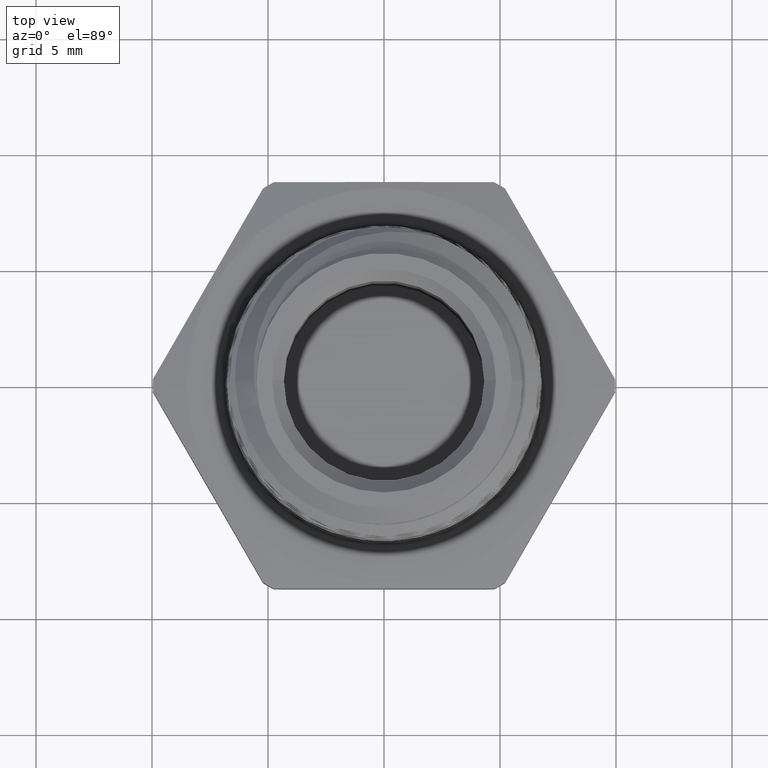
[diagram: clean part render]
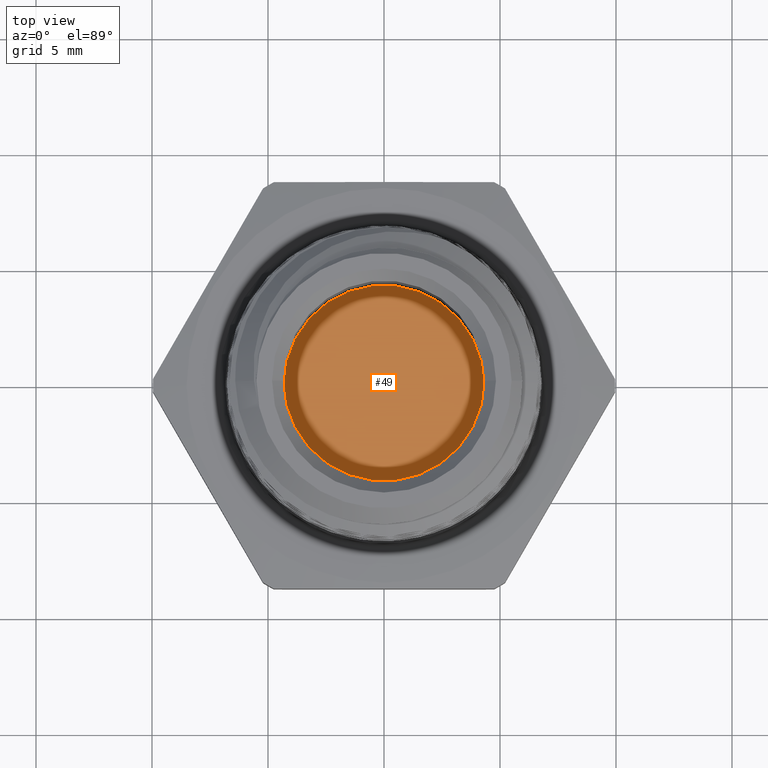
[diagram: same view with one face highlighted and labeled with its STEP entity id]
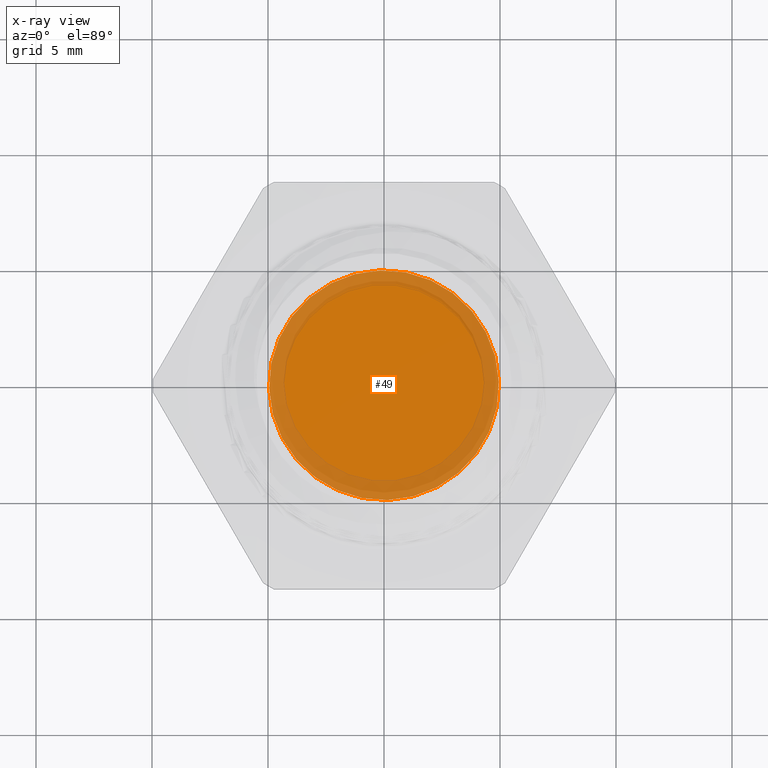
[diagram: x-ray of the same camera — body ghosted, the highlighted face saturated]
A machine part, top view. The second image highlights one B-rep face of the part: STEP entity #49.
The next image is the same camera in x-ray: the body ghosted, the highlighted face saturated — about 26% of this face is hidden behind the body in this view.
In plain terms, the highlighted planar face has unit normal (-0, -0, 1).
Its self-contained STEP definition (entity closure, byte-faithful):
#49 = ADVANCED_FACE ( 'NONE', ( #733 ), #5382, .T. ) ;
#112 = EDGE_CURVE ( 'NONE', #548, #546, #1296, .T. ) ;
#124 = EDGE_CURVE ( 'NONE', #546, #548, #1314, .T. ) ;
#546 = VERTEX_POINT ( 'NONE', #4083 ) ;
#548 = VERTEX_POINT ( 'NONE', #4084 ) ;
#649 = EDGE_LOOP ( 'NONE', ( #5316, #5344 ) ) ;
#733 = FACE_OUTER_BOUND ( 'NONE', #649, .T. ) ;
#779 = AXIS2_PLACEMENT_3D ( 'NONE', #5380, #5384, #5385 ) ;
#836 = AXIS2_PLACEMENT_3D ( 'NONE', #1686, #1687, #1688 ) ;
#847 = AXIS2_PLACEMENT_3D ( 'NONE', #1714, #1715, #1716 ) ;
#1296 = CIRCLE ( 'NONE', #836, 0.1950000000000000300 ) ;
#1314 = CIRCLE ( 'NONE', #847, 0.1950000000000000300 ) ;
#1686 = CARTESIAN_POINT ( 'NONE',  ( -2.019159664673211200E-017, 5.316369125326775900E-018, 0.1968503937007874100 ) ) ;
#1687 = DIRECTION ( 'NONE',  ( 0.0000000000000000000, -1.368455531567209000E-048, 1.000000000000000000 ) ) ;
#1688 = DIRECTION ( 'NONE',  ( 0.0000000000000000000, -1.000000000000000000, 0.0000000000000000000 ) ) ;
#1714 = CARTESIAN_POINT ( 'NONE',  ( -2.019159664673211200E-017, 5.316369125326775900E-018, 0.1968503937007874100 ) ) ;
#1715 = DIRECTION ( 'NONE',  ( 0.0000000000000000000, -1.368455531567209000E-048, 1.000000000000000000 ) ) ;
#1716 = DIRECTION ( 'NONE',  ( 0.0000000000000000000, -1.000000000000000000, 0.0000000000000000000 ) ) ;
#4083 = CARTESIAN_POINT ( 'NONE',  ( -0.1950000000000000600, 5.316369125326775900E-018, 0.1968503937007874100 ) ) ;
#4084 = CARTESIAN_POINT ( 'NONE',  ( 0.1950000000000000100, 2.980930510827384000E-017, 0.1968503937007874100 ) ) ;
#5316 = ORIENTED_EDGE ( 'NONE', *, *, #124, .T. ) ;
#5344 = ORIENTED_EDGE ( 'NONE', *, *, #112, .T. ) ;
#5380 = CARTESIAN_POINT ( 'NONE',  ( 0.0000000000000000000, 0.0000000000000000000, 0.1968503937007874100 ) ) ;
#5382 = PLANE ( 'NONE',  #779 ) ;
#5384 = DIRECTION ( 'NONE',  ( -2.189528850507526700E-047, -1.368455531567222400E-048, 1.000000000000000000 ) ) ;
#5385 = DIRECTION ( 'NONE',  ( 1.000000000000000000, 6.106226635438361000E-016, 2.189528850507526700E-047 ) ) ;